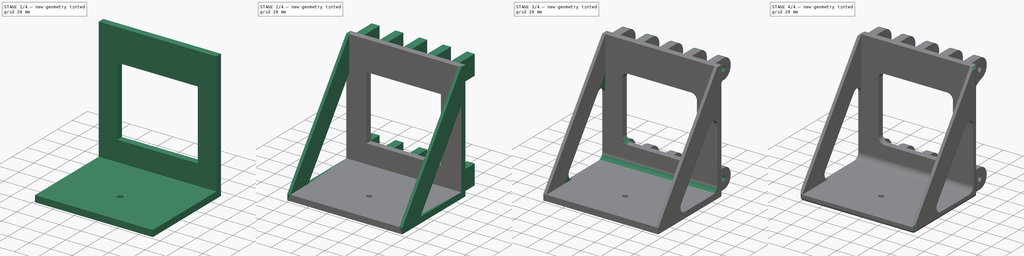
[diagram: build sequence overview — one tinted view per stage of 4, left to right]
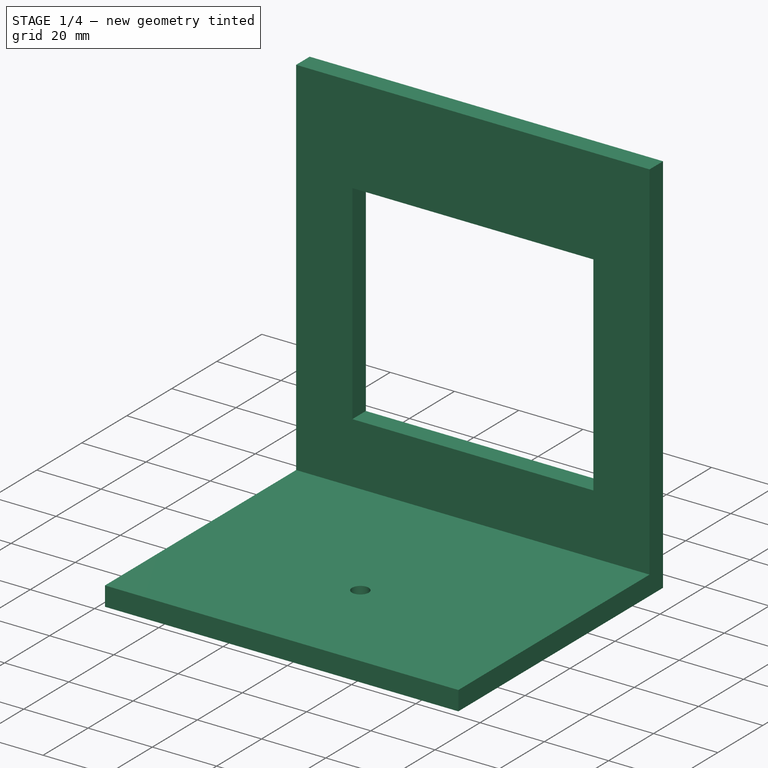
[diagram: stage 1 of 4 — iso view after this stage's code; geometry added in this stage tinted green]
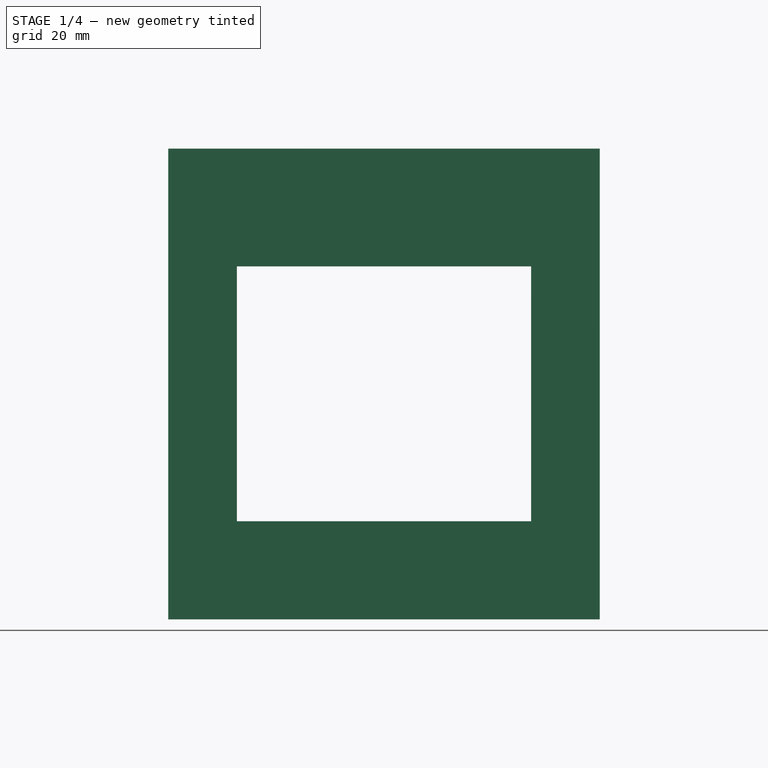
[diagram: stage 1 of 4 — front view after this stage's code; geometry added in this stage tinted green]
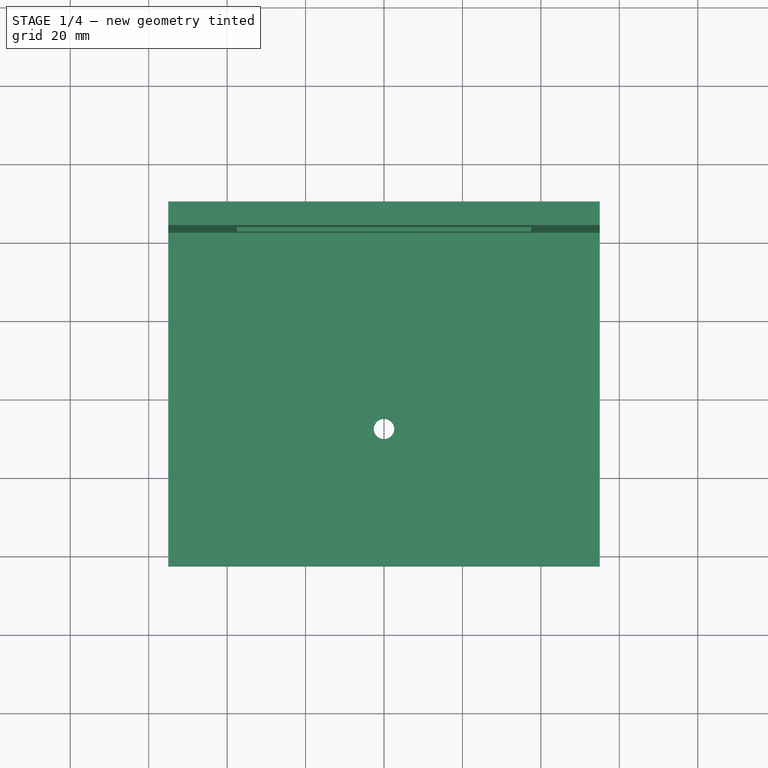
[diagram: stage 1 of 4 — top view after this stage's code; geometry added in this stage tinted green]
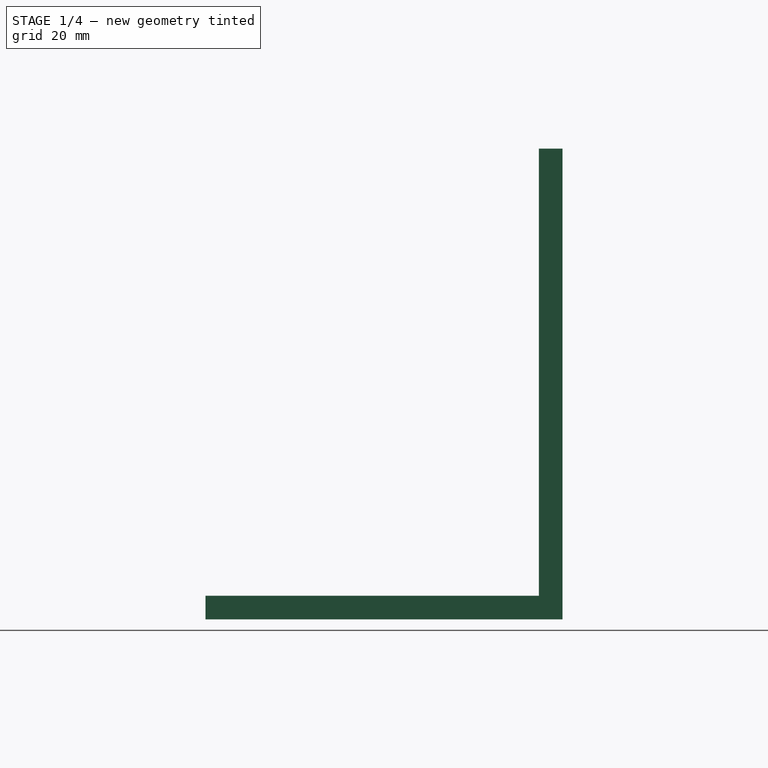
[diagram: stage 1 of 4 — right view after this stage's code; geometry added in this stage tinted green]
FCSTD DOCUMENT  (FreeCAD 0.20R29410 (Git))
Label: qualisys_mount
License: All rights reserved
LicenseURL: http://en.wikipedia.org/wiki/All_rights_reserved
objects: Sketcher::SketchObject×6, PartDesign::Pad×4, PartDesign::Fillet×4, PartDesign::Pocket×2, PartDesign::Chamfer×2, PartDesign::Mirrored×1, PartDesign::Body×1
note: 32 computed .brp shape members not serialized (recipe doc carries the construction recipe); baked Part::Feature solids carry a one-line shape summary decoded from their .brp

FEATURE [Sketcher::SketchObject] Sketch
  FullyConstrained = false
  MapMode = 5
  Support = -> [XY_Plane]
  sketch-geometry (5):
    g0: LineSegment StartX=-55 StartY=42.5 StartZ=0 EndX=55 EndY=42.5 EndZ=0
    g1: LineSegment StartX=55 StartY=42.5 StartZ=0 EndX=55 EndY=-42.5 EndZ=0
    g2: LineSegment StartX=55 StartY=-42.5 StartZ=0 EndX=-55 EndY=-42.5 EndZ=0
    g3: LineSegment StartX=-55 StartY=-42.5 StartZ=0 EndX=-55 EndY=42.5 EndZ=0
    g4: Circle CenterX=0 CenterY=-7.5 CenterZ=0 NormalX=0 NormalY=0 NormalZ=1 AngleXU=0 Radius=2.6
  constraints (15):
    c: Coincident(g0,g1)
    c: Coincident(g1,g2)
    c: Coincident(g2,g3)
    c: Coincident(g3,g0)
    c: Horizontal(g0)
    c: Horizontal(g2)
    c: Vertical(g1)
    c: Vertical(g3)
    c: Symmetric(g1,g0,g-1)
    c: Symmetric(g0,g0,g-2)
    c: DistanceY(g3,g3) = 85
    c: DistanceX(g0,g0) = 110
    c: PointOnObject(g4,g-2)
    c: DistanceY(g4,g0) = 50
    c: Radius(g4) = 2.6
FEATURE [PartDesign::Pad] Pad
  AllowMultiFace = false
  Direction = (1,1,1)
  Length = 6
  Length2 = 100
  Profile = -> Sketch
  Refine = true
  Type = 0
FEATURE [Sketcher::SketchObject] Sketch001
  FullyConstrained = true
  MapMode = 5
  Placement = pos=(0,0,0) rot=(1,0,0;3.14159rad)
  Support = -> [Pad]
  sketch-geometry (1):
    g0: Circle CenterX=0 CenterY=7.5 CenterZ=0 NormalX=0 NormalY=0 NormalZ=1 AngleXU=0 Radius=12
  constraints (3):
    c: PointOnObject(g0,g-2)
    c: DistanceY(g0) = 7.5
    c: Radius(g0) = 12
FEATURE [PartDesign::Pocket] Pocket
  AllowMultiFace = false
  BaseFeature = -> Pad
  Direction = (0,0,1)
  Length = 2
  Length2 = 100
  Profile = -> Sketch001
  Refine = true
  Type = 0
FEATURE [Sketcher::SketchObject] Sketch002
  FullyConstrained = true
  MapMode = 5
  Placement = pos=(0,42.5,0) rot=(0,0.707107,0.707107;3.14159rad)
  Support = -> [Pocket]
  sketch-geometry (8):
    g0: LineSegment StartX=-55 StartY=120 StartZ=0 EndX=55 EndY=120 EndZ=0
    g1: LineSegment StartX=55 StartY=120 StartZ=0 EndX=55 EndY=0 EndZ=0
    g2: LineSegment StartX=55 StartY=0 StartZ=0 EndX=-55 EndY=0 EndZ=0
    g3: LineSegment StartX=-55 StartY=0 StartZ=0 EndX=-55 EndY=120 EndZ=0
    g4: LineSegment StartX=-37.5 StartY=90 StartZ=0 EndX=37.5 EndY=90 EndZ=0
    g5: LineSegment StartX=37.5 StartY=90 StartZ=0 EndX=37.5 EndY=25 EndZ=0
    g6: LineSegment StartX=37.5 StartY=25 StartZ=0 EndX=-37.5 EndY=25 EndZ=0
    g7: LineSegment StartX=-37.5 StartY=25 StartZ=0 EndX=-37.5 EndY=90 EndZ=0
  constraints (22):
    c: Coincident(g0,g1)
    c: Coincident(g1,g2)
    c: Coincident(g2,g3)
    c: Coincident(g3,g0)
    c: Horizontal(g0)
    c: Vertical(g1)
    c: Vertical(g3)
    c: PointOnObject(g1,g-1)
    c: Symmetric(g2,g1,g-2)
    c: DistanceX(g0,g0) = 110
    c: DistanceY(g3,g3) = 120
    c: Coincident(g4,g5)
    c: Coincident(g5,g6)
    c: Coincident(g6,g7)
    c: Coincident(g7,g4)
    c: Horizontal(g4)
    c: Vertical(g5)
    c: Vertical(g7)
    c: DistanceY(g7,g7) = 65
    c: DistanceX(g4,g4) = 75
    c: Symmetric(g6,g5,g-2)
    c: DistanceY(g6) = 25
FEATURE [PartDesign::Pad] Pad001
  AllowMultiFace = false
  BaseFeature = -> Pocket
  Direction = (0,1,-2e-16)
  Length = 6
  Length2 = 100
  Profile = -> Sketch002
  Refine = true
  Type = 0
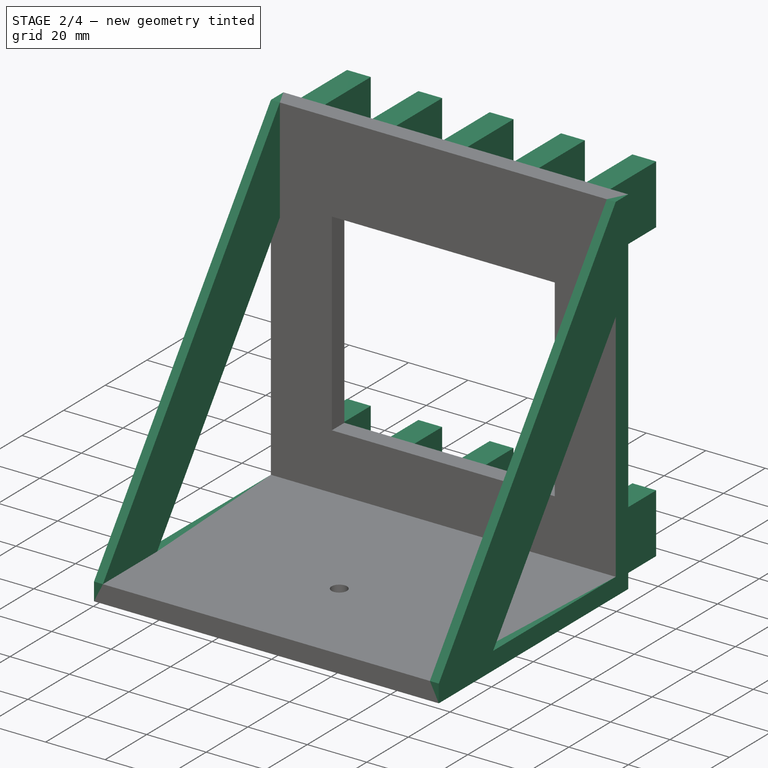
[diagram: stage 2 of 4 — iso view after this stage's code; geometry added in this stage tinted green]
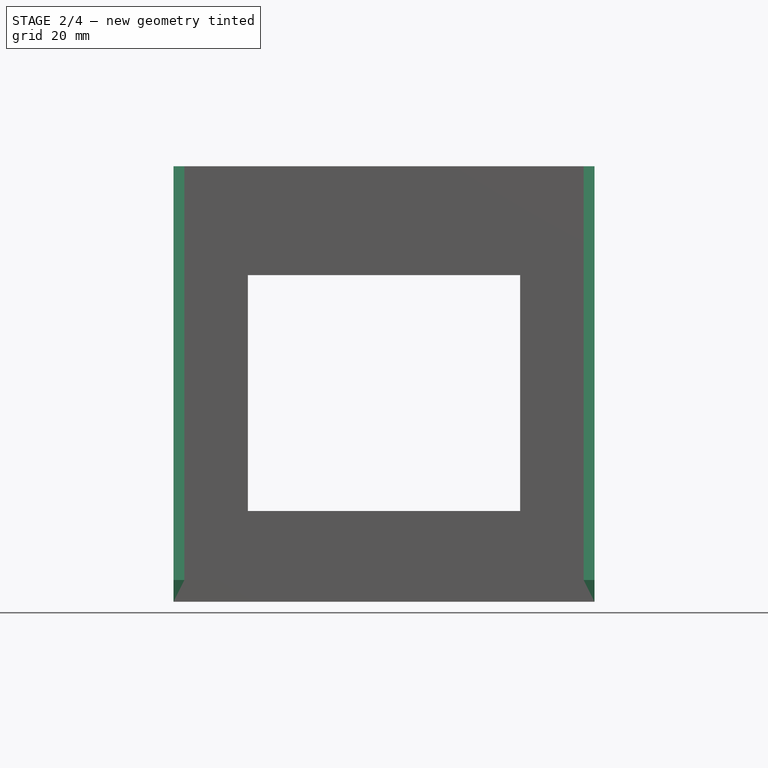
[diagram: stage 2 of 4 — front view after this stage's code; geometry added in this stage tinted green]
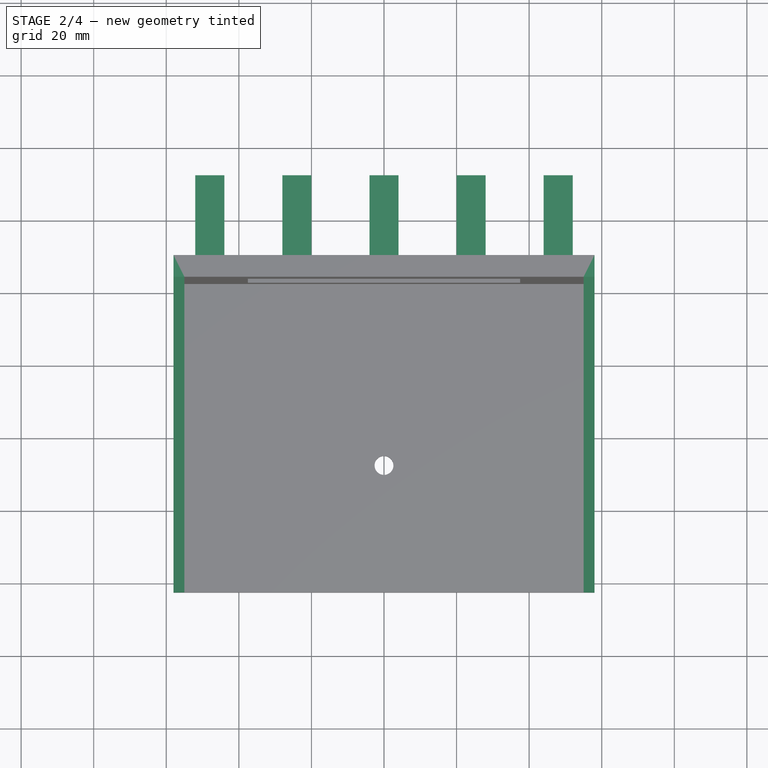
[diagram: stage 2 of 4 — top view after this stage's code; geometry added in this stage tinted green]
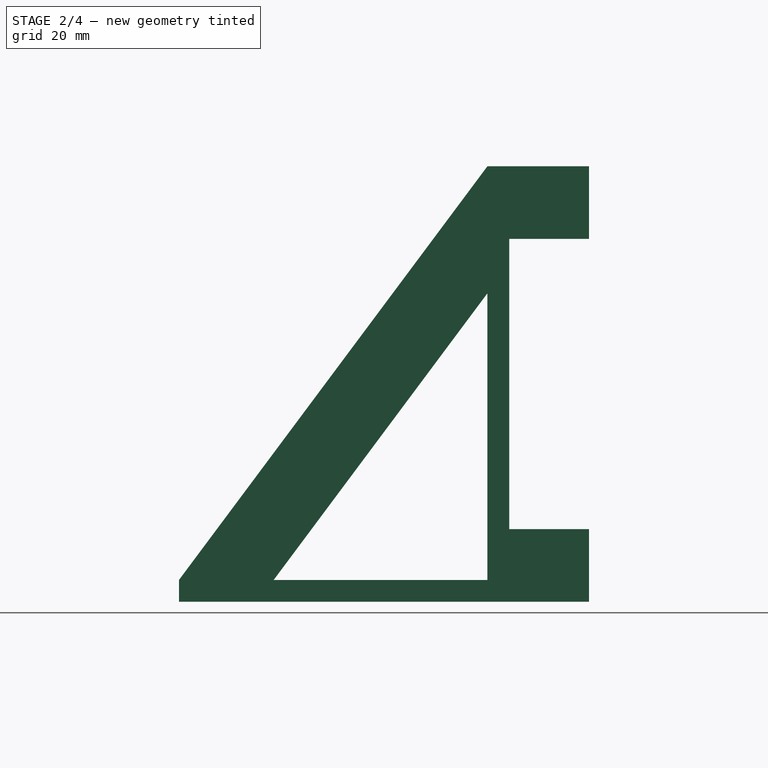
[diagram: stage 2 of 4 — right view after this stage's code; geometry added in this stage tinted green]
FEATURE [Sketcher::SketchObject] Sketch003
  FullyConstrained = true
  MapMode = 5
  Placement = pos=(55,0,0) rot=(0.57735,0.57735,0.57735;2.0944rad)
  Support = -> [Pad001]
  sketch-geometry (8):
    g0: LineSegment StartX=-42.5 StartY=6 StartZ=0 EndX=42.5 EndY=120 EndZ=0
    g1: LineSegment StartX=42.5 StartY=120 StartZ=0 EndX=48.5 EndY=120 EndZ=0
    g2: LineSegment StartX=48.5 StartY=120 StartZ=0 EndX=48.5 EndY=0 EndZ=0
    g3: LineSegment StartX=48.5 StartY=0 StartZ=0 EndX=-42.5 EndY=0 EndZ=0
    g4: LineSegment StartX=-42.5 StartY=0 StartZ=0 EndX=-42.5 EndY=6 EndZ=0
    g5: LineSegment StartX=42.5 StartY=85 StartZ=0 EndX=-16.4035 EndY=6 EndZ=0
    g6: LineSegment StartX=-16.4035 StartY=6 StartZ=0 EndX=42.5 EndY=6 EndZ=0
    g7: LineSegment StartX=42.5 StartY=6 StartZ=0 EndX=42.5 EndY=85 EndZ=0
  constraints (24):
    c: Coincident(g0,g1)
    c: Horizontal(g1)
    c: Coincident(g1,g2)
    c: PointOnObject(g2,g-1)
    c: Vertical(g2)
    c: Coincident(g2,g3)
    c: Coincident(g3,g4)
    c: Vertical(g4)
    c: Coincident(g4,g0)
    c: DistanceY(g4,g4) = 6
    c: DistanceX(g1,g1) = 6
    c: DistanceX(g2) = 48.5
    c: DistanceY(g2,g2) = 120
    c: Horizontal(g3)
    c: DistanceX(g3) = -42.5
    c: Coincident(g5,g6)
    c: Horizontal(g6)
    c: Coincident(g6,g7)
    c: Vertical(g7)
    c: Coincident(g5,g7)
    c: Parallel(g5,g0)
    c: DistanceY(g5) = 6
    c: DistanceX(g5,g2) = 6
    c: DistanceY(g5,g0) = 35
FEATURE [PartDesign::Pad] Pad002
  AllowMultiFace = false
  BaseFeature = -> Pad001
  Direction = (1,0,0)
  Length = 3
  Length2 = 100
  Profile = -> Sketch003
  Refine = true
  Type = 0
FEATURE [PartDesign::Mirrored] Mirrored
  BaseFeature = -> Pad002
  MirrorPlane = -> YZ_Plane
  Originals = -> [Pad002]
  Refine = true
FEATURE [Sketcher::SketchObject] Sketch004
  FullyConstrained = true
  MapMode = 5
  Placement = pos=(2.99e-12,48.5,-5.3e-15) rot=(0,0.707107,0.707107;3.14159rad)
  Support = -> [Mirrored]
  sketch-geometry (40):
    g0: LineSegment StartX=-28 StartY=120 StartZ=0 EndX=-20 EndY=120 EndZ=0
    g1: LineSegment StartX=-20 StartY=120 StartZ=0 EndX=-20 EndY=100 EndZ=0
    g2: LineSegment StartX=-20 StartY=100 StartZ=0 EndX=-28 EndY=100 EndZ=0
    g3: LineSegment StartX=-28 StartY=100 StartZ=0 EndX=-28 EndY=120 EndZ=0
    g4: LineSegment StartX=20 StartY=120 StartZ=0 EndX=28 EndY=120 EndZ=0
    g5: LineSegment StartX=28 StartY=120 StartZ=0 EndX=28 EndY=100 EndZ=0
    g6: LineSegment StartX=28 StartY=100 StartZ=0 EndX=20 EndY=100 EndZ=0
    g7: LineSegment StartX=20 StartY=100 StartZ=0 EndX=20 EndY=120 EndZ=0
    g8: LineSegment StartX=-28 StartY=20 StartZ=0 EndX=-20 EndY=20 EndZ=0
    g9: LineSegment StartX=-20 StartY=20 StartZ=0 EndX=-20 EndY=0 EndZ=0
    g10: LineSegment StartX=-20 StartY=0 StartZ=0 EndX=-28 EndY=0 EndZ=0
    g11: LineSegment StartX=-28 StartY=0 StartZ=0 EndX=-28 EndY=20 EndZ=0
    g12: LineSegment StartX=28 StartY=20 StartZ=0 EndX=20 EndY=20 EndZ=0
    g13: LineSegment StartX=20 StartY=20 StartZ=0 EndX=20 EndY=0 EndZ=0
    g14: LineSegment StartX=20 StartY=0 StartZ=0 EndX=28 EndY=0 EndZ=0
    g15: LineSegment StartX=28 StartY=0 StartZ=0 EndX=28 EndY=20 EndZ=0
    g16: LineSegment StartX=-4 StartY=20 StartZ=0 EndX=4 EndY=20 EndZ=0
    g17: LineSegment StartX=4 StartY=20 StartZ=0 EndX=4 EndY=0 EndZ=0
    g18: LineSegment StartX=4 StartY=0 StartZ=0 EndX=-4 EndY=0 EndZ=0
    g19: LineSegment StartX=-4 StartY=0 StartZ=0 EndX=-4 EndY=20 EndZ=0
    g20: LineSegment StartX=-4 StartY=120 StartZ=0 EndX=4 EndY=120 EndZ=0
    g21: LineSegment StartX=4 StartY=120 StartZ=0 EndX=4 EndY=100 EndZ=0
    g22: LineSegment StartX=4 StartY=100 StartZ=0 EndX=-4 EndY=100 EndZ=0
    g23: LineSegment StartX=-4 StartY=100 StartZ=0 EndX=-4 EndY=120 EndZ=0
    g24: LineSegment StartX=-44 StartY=100 StartZ=0 EndX=-52 EndY=100 EndZ=0
    g25: LineSegment StartX=-52 StartY=100 StartZ=0 EndX=-52 EndY=120 EndZ=0
    g26: LineSegment StartX=-52 StartY=120 StartZ=0 EndX=-44 EndY=120 EndZ=0
    g27: LineSegment StartX=-44 StartY=120 StartZ=0 EndX=-44 EndY=100 EndZ=0
    g28: LineSegment StartX=52 StartY=120 StartZ=0 EndX=44 EndY=120 EndZ=0
    g29: LineSegment StartX=44 StartY=120 StartZ=0 EndX=44 EndY=100 EndZ=0
    g30: LineSegment StartX=44 StartY=100 StartZ=0 EndX=52 EndY=100 EndZ=0
    g31: LineSegment StartX=52 StartY=100 StartZ=0 EndX=52 EndY=120 EndZ=0
    g32: LineSegment StartX=-52 StartY=20 StartZ=0 EndX=-44 EndY=20 EndZ=0
    g33: LineSegment StartX=-44 StartY=20 StartZ=0 EndX=-44 EndY=0 EndZ=0
    g34: LineSegment StartX=-44 StartY=0 StartZ=0 EndX=-52 EndY=0 EndZ=0
    g35: LineSegment StartX=-52 StartY=0 StartZ=0 EndX=-52 EndY=20 EndZ=0
    g36: LineSegment StartX=44 StartY=20 StartZ=0 EndX=52 EndY=20 EndZ=0
    g37: LineSegment StartX=52 StartY=20 StartZ=0 EndX=52 EndY=0 EndZ=0
    g38: LineSegment StartX=52 StartY=0 StartZ=0 EndX=44 EndY=0 EndZ=0
    g39: LineSegment StartX=44 StartY=0 StartZ=0 EndX=44 EndY=20 EndZ=0
  constraints (114):
    c: Coincident(g0,g1)
    c: Coincident(g1,g2)
    c: Coincident(g2,g3)
    c: Coincident(g3,g0)
    c: Vertical(g1)
    c: Vertical(g3)
    c: Coincident(g4,g5)
    c: Coincident(g5,g6)
    c: Coincident(g6,g7)
    c: Coincident(g7,g4)
    c: Vertical(g5)
    c: Vertical(g7)
    c: Symmetric(g0,g4,g-2)
    c: Equal(g6,g2)
    c: DistanceY(g0) = 120
    c: DistanceX(g6,g6) = 8
    c: DistanceX(g0,g4) = 40
    c: Equal(g3,g5)
    c: DistanceY(g3,g3) = 20
    c: Coincident(g8,g9)
    c: Coincident(g9,g10)
    c: Coincident(g10,g11)
    c: Coincident(g11,g8)
    c: Vertical(g9)
    c: Vertical(g11)
    c: PointOnObject(g9,g-1)
    c: Coincident(g12,g13)
    c: Coincident(g13,g14)
    c: Coincident(g14,g15)
    c: Coincident(g15,g12)
    c: Vertical(g13)
    c: Vertical(g15)
    c: Coincident(g16,g17)
    c: Coincident(g17,g18)
    c: Coincident(g18,g19)
    c: Coincident(g19,g16)
    c: Vertical(g17)
    c: Vertical(g19)
    c: Coincident(g20,g21)
    c: Coincident(g21,g22)
    c: Coincident(g22,g23)
    c: Coincident(g23,g20)
    c: Vertical(g21)
    c: Vertical(g23)
    c: DistanceX(g22,g22) = 8
    c: Symmetric(g22,g21,g-2)
    c: DistanceY(g20,g0) = 0
    c: Equal(g8,g16)
    c: Equal(g16,g12)
    c: Symmetric(g9,g13,g-2)
    c: Symmetric(g17,g18,g-2)
    c: Horizontal(g14)
    c: Horizontal(g10)
    c: Horizontal(g4)
    c: Horizontal(g0)
    c: Horizontal(g2)
    c: Horizontal(g6)
    c: Horizontal(g20)
    c: Equal(g23,g1)
    c: Equal(g9,g19)
    c: Equal(g19,g13)
    c: Equal(g13,g7)
    c: Horizontal(g12)
    c: Horizontal(g16)
    c: Horizontal(g8)
    c: Equal(g8,g2)
    c: DistanceX(g8,g2) = 0
    c: PointOnObject(g18,g-1)
    c: Coincident(g24,g25)
    c: Coincident(g25,g26)
    c: Coincident(g26,g27)
    c: Coincident(g27,g24)
    c: Horizontal(g24)
    c: Horizontal(g26)
    c: Vertical(g25)
    c: Vertical(g27)
    c: Coincident(g28,g29)
    c: Coincident(g29,g30)
    c: Coincident(g30,g31)
    c: Coincident(g31,g28)
    c: Horizontal(g28)
    c: Horizontal(g30)
    c: Vertical(g29)
    c: Vertical(g31)
    c: Equal(g29,g5)
    c: Equal(g5,g27)
    c: Equal(g6,g30)
    c: Equal(g30,g24)
    c: DistanceX(g26,g0) = 16
    c: Symmetric(g26,g28,g-2)
    c: DistanceY(g26,g0) = 0
    c: Coincident(g32,g33)
    c: Coincident(g33,g34)
    c: Coincident(g34,g35)
    c: Coincident(g35,g32)
    c: Horizontal(g32)
    c: Horizontal(g34)
    c: Vertical(g33)
    c: Vertical(g35)
    c: PointOnObject(g33,g-1)
    c: Coincident(g36,g37)
    c: Coincident(g37,g38)
    c: Coincident(g38,g39)
    c: Coincident(g39,g36)
    c: Horizontal(g36)
    c: Horizontal(g38)
    c: Vertical(g37)
    c: Vertical(g39)
    c: PointOnObject(g37,g-1)
    c: Equal(g12,g36)
    c: Equal(g36,g32)
    c: Equal(g33,g15)
    c: Symmetric(g32,g36,g-2)
    c: DistanceX(g12,g36) = 16
FEATURE [PartDesign::Pad] Pad003
  AllowMultiFace = false
  BaseFeature = -> Mirrored
  Direction = (6.17e-14,1,-2e-16)
  Length = 22
  Length2 = 100
  Profile = -> Sketch004
  ReferenceAxis = -> Sketch004 [N_Axis]
  Refine = true
  Type = 0
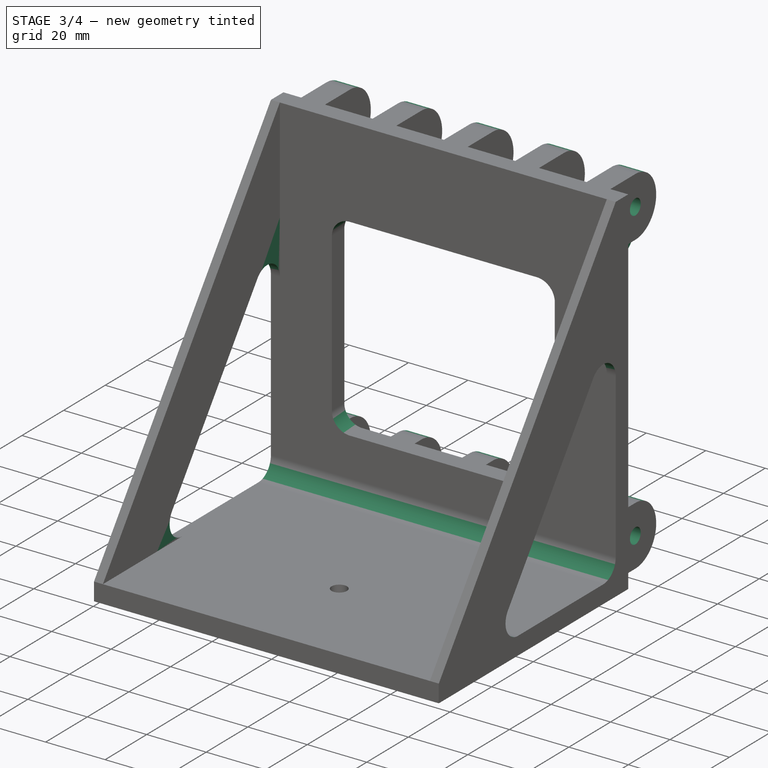
[diagram: stage 3 of 4 — iso view after this stage's code; geometry added in this stage tinted green]
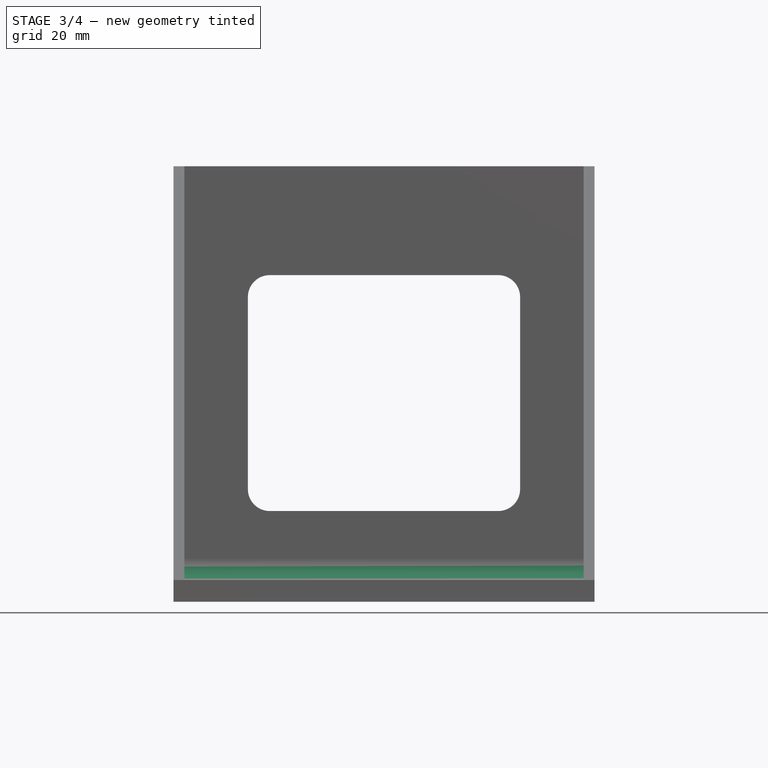
[diagram: stage 3 of 4 — front view after this stage's code; geometry added in this stage tinted green]
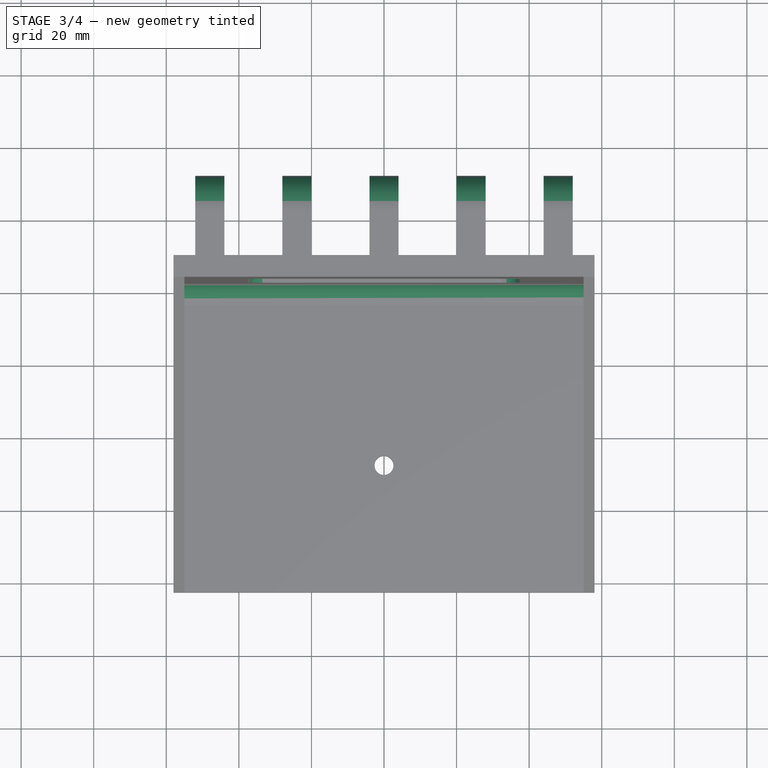
[diagram: stage 3 of 4 — top view after this stage's code; geometry added in this stage tinted green]
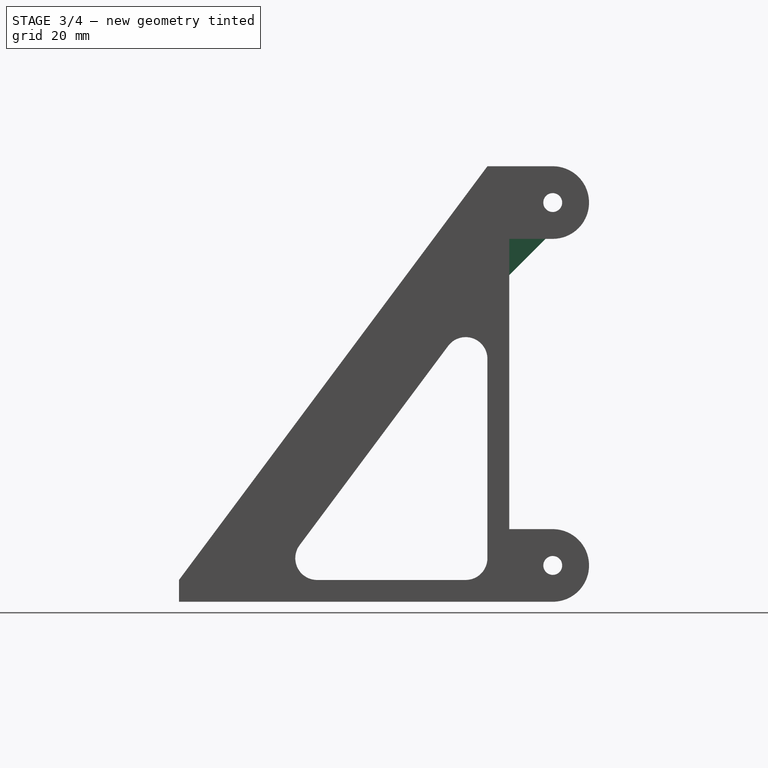
[diagram: stage 3 of 4 — right view after this stage's code; geometry added in this stage tinted green]
FEATURE [Sketcher::SketchObject] Sketch005
  FullyConstrained = true
  MapMode = 5
  Placement = pos=(52,-3.2058e-12,0) rot=(0.57735,0.57735,0.57735;2.0944rad)
  Support = -> [Pad003]
  sketch-geometry (2):
    g0: Circle CenterX=60.5 CenterY=110 CenterZ=0 NormalX=0 NormalY=0 NormalZ=1 AngleXU=0 Radius=2.6
    g1: Circle CenterX=60.5 CenterY=10 CenterZ=0 NormalX=0 NormalY=0 NormalZ=1 AngleXU=0 Radius=2.6
  constraints (6):
    c: DistanceX(g0) = 60.5
    c: DistanceY(g0) = 110
    c: Radius(g0) = 2.6
    c: Equal(g1,g0)
    c: DistanceY(g1) = 10
    c: DistanceX(g0,g1) = 0
FEATURE [PartDesign::Pocket] Pocket001
  AllowMultiFace = false
  BaseFeature = -> Pad003
  Direction = (-1,6.17e-14,0)
  Length = 100
  Length2 = 100
  Profile = -> Sketch005
  ReferenceAxis = -> Sketch005 [N_Axis]
  Refine = true
  Type = 1
FEATURE [PartDesign::Fillet] Fillet
  Base = -> Pocket001 [Edge25,Edge21,Edge17,Edge13,Edge9,Edge89,Edge96,Edge103,Edge110,Edge117,Edge162,Edge169,Edge176,Edge183,Edge190,Edge139,Edge136,Edge133,Edge130,Edge127]
  BaseFeature = -> Pocket001
  Radius = 9.99
  SupportTransform = false
  UseAllEdges = false
FEATURE [PartDesign::Chamfer] Chamfer
  Angle = 45
  Base = -> Fillet [Edge44,Edge48,Edge52,Edge40,Edge36]
  BaseFeature = -> Fillet
  ChamferType = 0
  FlipDirection = false
  Size = 9.99
  Size2 = 1
  SupportTransform = false
  UseAllEdges = false
FEATURE [PartDesign::Fillet] Fillet001
  Base = -> Chamfer [Edge247,Edge270,Edge246,Edge228,Edge231,Edge233,Edge229,Edge245,Edge266]
  BaseFeature = -> Chamfer
  Radius = 6
  SupportTransform = false
  UseAllEdges = false
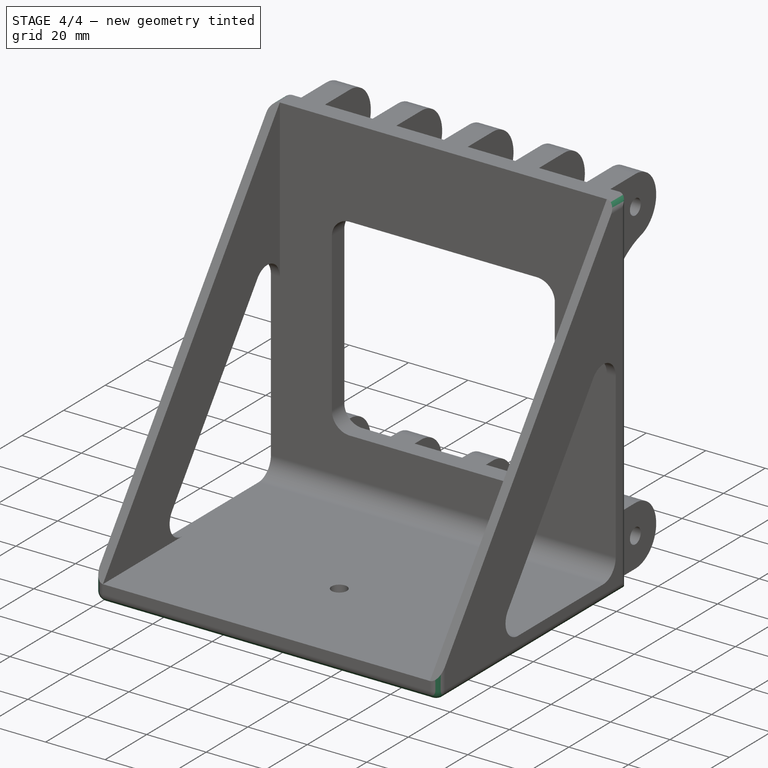
[diagram: stage 4 of 4 — iso view after this stage's code; geometry added in this stage tinted green]
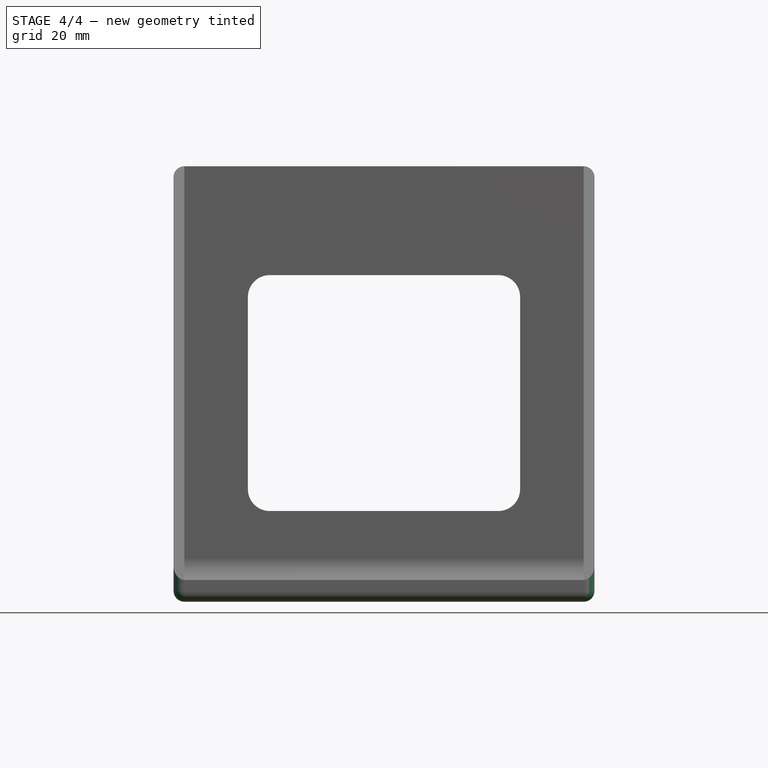
[diagram: stage 4 of 4 — front view after this stage's code; geometry added in this stage tinted green]
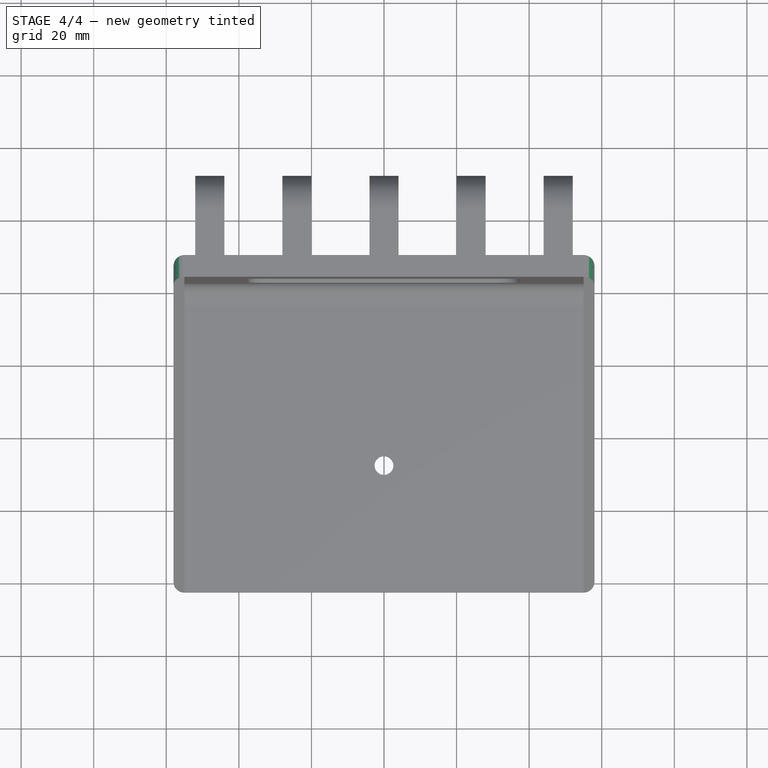
[diagram: stage 4 of 4 — top view after this stage's code; geometry added in this stage tinted green]
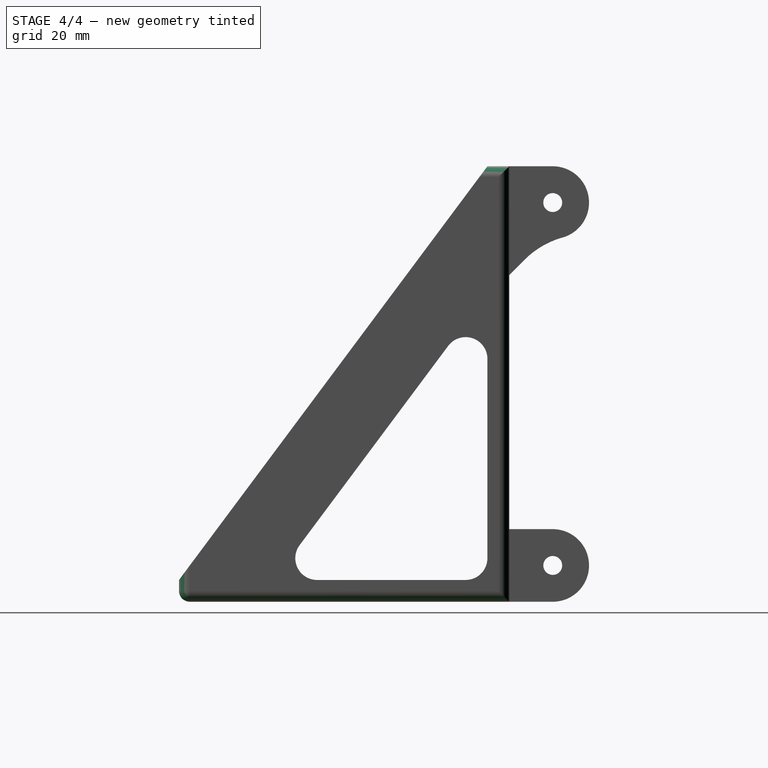
[diagram: stage 4 of 4 — right view after this stage's code; geometry added in this stage tinted green]
FEATURE [PartDesign::Fillet] Fillet002
  Base = -> Fillet001 [Edge172,Edge203,Edge98,Edge91,Edge43,Edge38,Edge178,Edge176,Edge171]
  BaseFeature = -> Fillet001
  Radius = 3
  SupportTransform = false
  UseAllEdges = false
FEATURE [PartDesign::Chamfer] Chamfer001
  Angle = 45
  Base = -> Fillet002 [Edge108]
  BaseFeature = -> Fillet002
  ChamferType = 0
  FlipDirection = false
  Size = 1.99
  Size2 = 1
  SupportTransform = false
  UseAllEdges = false
FEATURE [PartDesign::Fillet] Fillet003
  Base = -> Chamfer001 [Edge241,Edge320,Edge220,Edge317,Edge205,Edge314,Edge191,Edge311,Edge177,Edge308]
  BaseFeature = -> Chamfer001
  Radius = 24
  SupportTransform = false
  UseAllEdges = false
FEATURE [PartDesign::Body] Body
  Group = -> [Sketch,Pad,Sketch001,Pocket,Sketch002,Pad001,Sketch003,Pad002,Mirrored,Sketch004,Pad003,Sketch005,Pocket001,Fillet,Chamfer,Fillet001,Fillet002,Chamfer001,Fillet003]
  Origin = -> Origin
  Tip = -> Fillet003
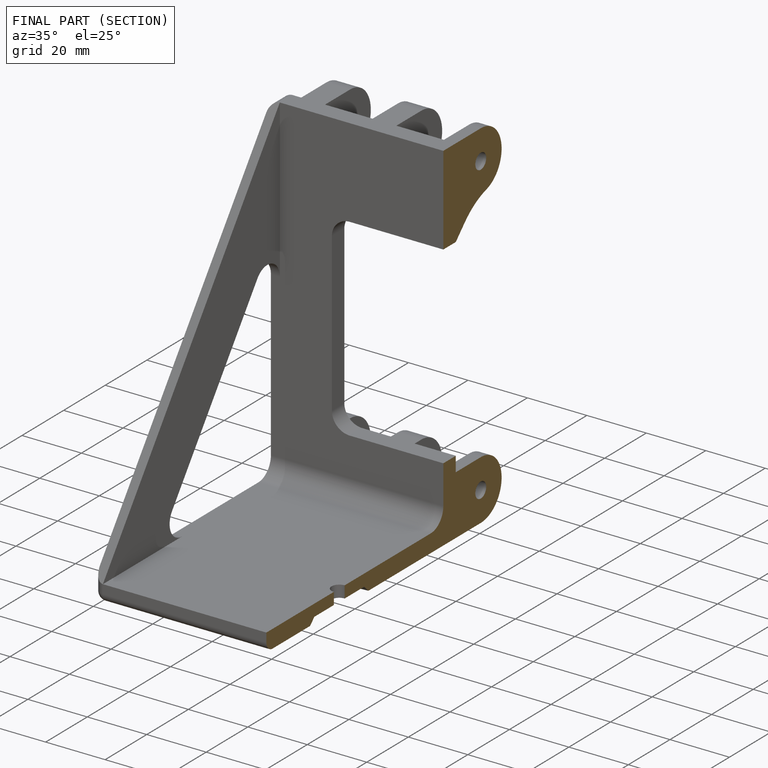
[diagram: finished part — half-section view (interior)]
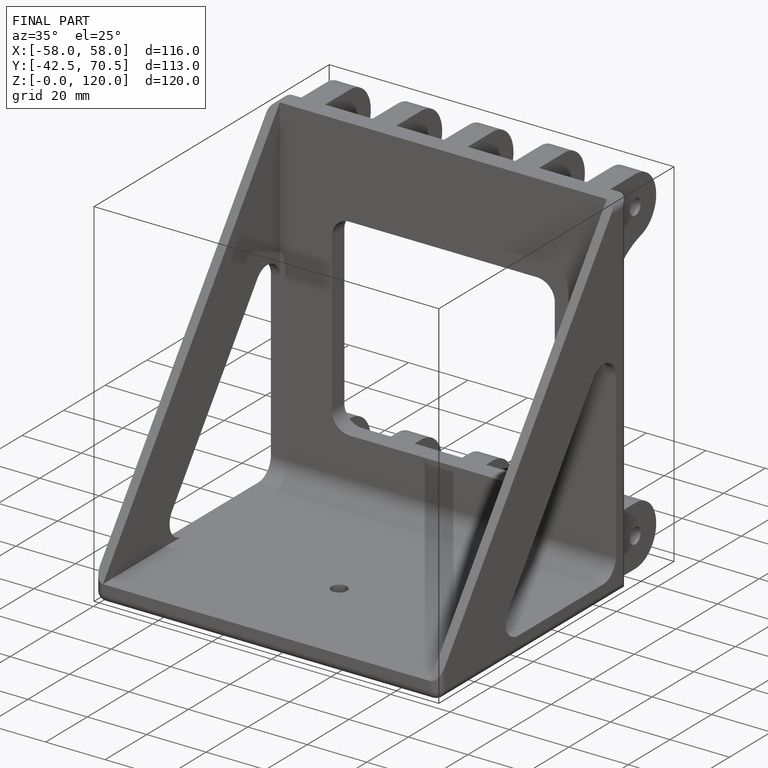
[diagram: finished part — iso view with bounding-box wireframe]
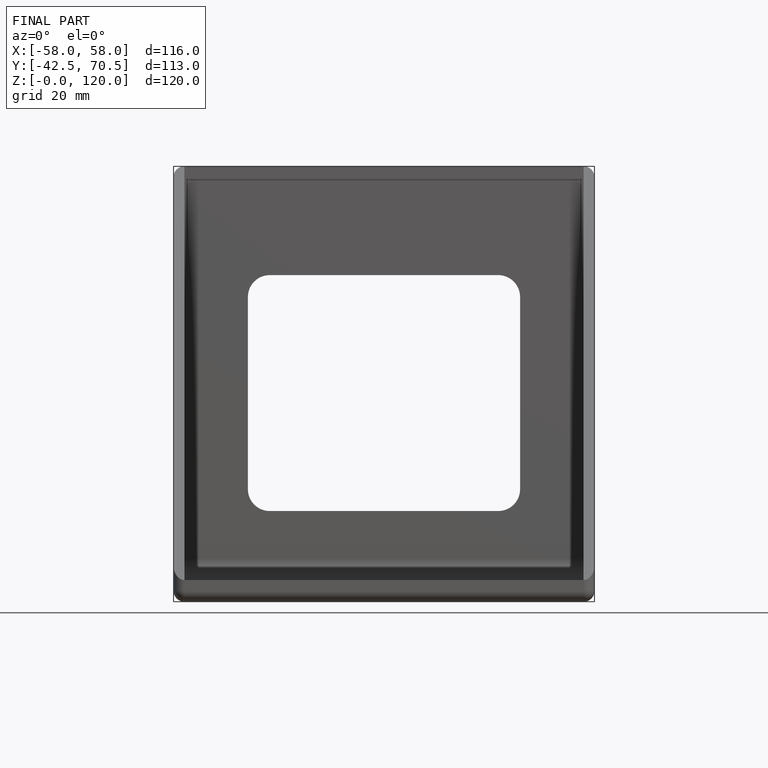
[diagram: finished part — front view with bounding-box wireframe]
